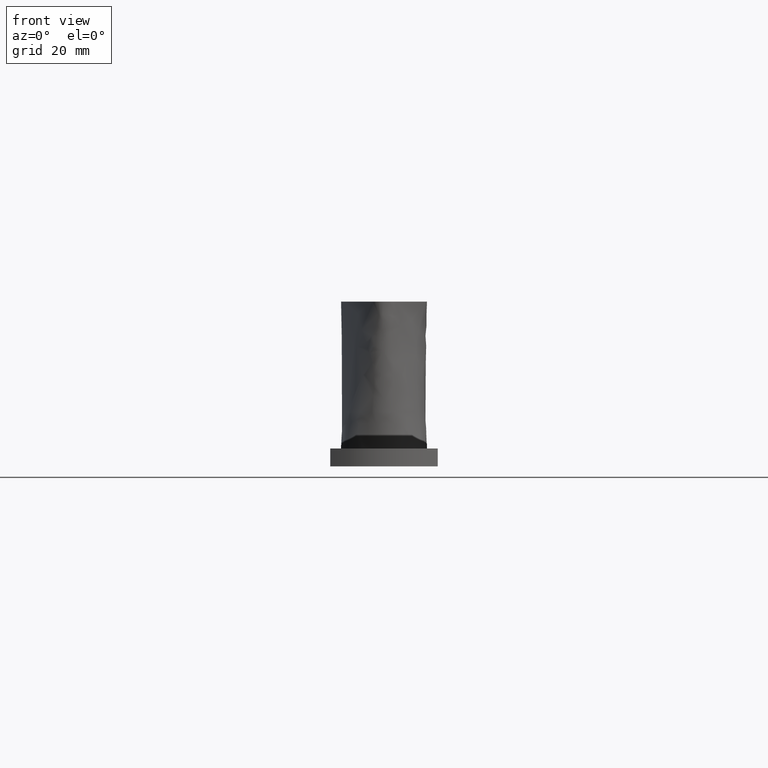
[diagram: clean part render]
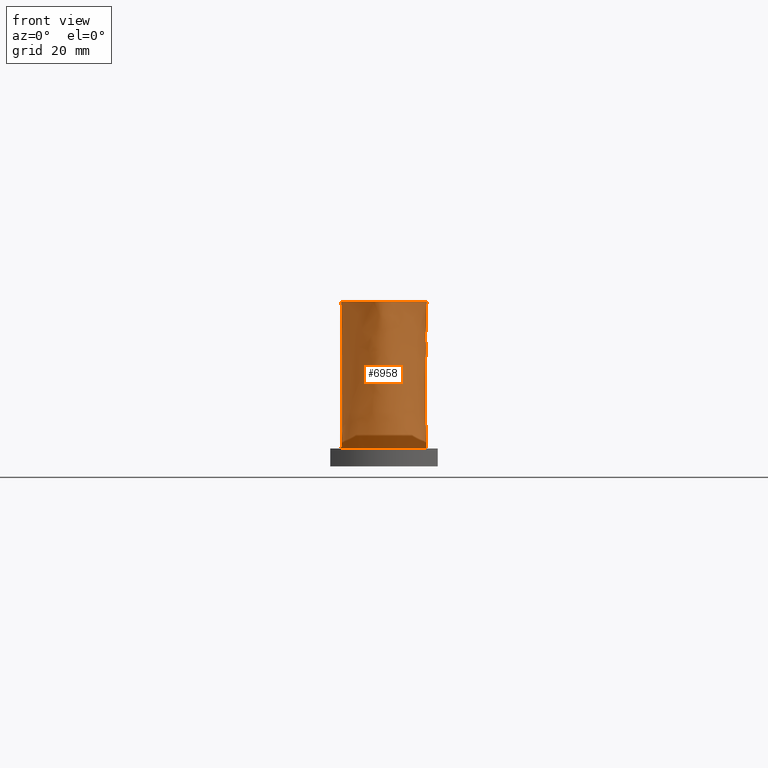
[diagram: same view with one face highlighted and labeled with its STEP entity id]
A machine part, front view. The second image highlights one B-rep face of the part: STEP entity #6958.
In plain terms, the highlighted face is a freeform B-spline surface patch.
Its self-contained STEP definition (entity closure, byte-faithful):
#345 = CARTESIAN_POINT ( 'NONE',  ( -11.46410161321323784, 84.11880215018366869, 43.50000000000000000 ) ) ;
#400 = CARTESIAN_POINT ( 'NONE',  ( 8.639018189386799662, 90.12171645842335010, 43.93942279200636847 ) ) ;
#459 = CARTESIAN_POINT ( 'NONE',  ( -9.891878588296751929, 88.18436017135024940, -0.01752466248678601415 ) ) ;
#517 = CARTESIAN_POINT ( 'NONE',  ( -9.664017299076695267, 89.88873812031310706, 43.93942279200643242 ) ) ;
#576 = CARTESIAN_POINT ( 'NONE',  ( -10.82780502940070910, 89.01775623270444271, 43.49999999999996447 ) ) ;
#608 = CARTESIAN_POINT ( 'NONE',  ( 4.906775124411571376, 70.45535358263663284, 2.499999999999981792 ) ) ;
#635 = CARTESIAN_POINT ( 'NONE',  ( 5.483349930221790736, 73.81949328955225553, 43.93942279200638978 ) ) ;
#666 = CARTESIAN_POINT ( 'NONE',  ( 2.905315791166148021, 69.83838413616943797, 2.499999999999981792 ) ) ;
#693 = CARTESIAN_POINT ( 'NONE',  ( 9.260036413460364102, 89.17032784503989262, 2.499999999999998668 ) ) ;
#715 = VERTEX_POINT ( 'NONE', #2138 ) ;
#761 = CARTESIAN_POINT ( 'NONE',  ( 7.464101615137753498, 77.19059892324152372, 43.50000000000002132 ) ) ;
#829 = CARTESIAN_POINT ( 'NONE',  ( 10.73476501058260801, 86.72443806294116087, -0.01752466248678774888 ) ) ;
#889 = CARTESIAN_POINT ( 'NONE',  ( 11.92447039168126999, 87.11827610633361019, 43.50000000000000000 ) ) ;
#949 = CARTESIAN_POINT ( 'NONE',  ( -10.84821365710961416, 75.23678092484141189, -0.01752466248679338673 ) ) ;
#1015 = CARTESIAN_POINT ( 'NONE',  ( -4.952611897107240146, 70.39316047889955996, -0.01752466248678774888 ) ) ;
#1037 = EDGE_LOOP ( 'NONE', ( #2805, #7866, #6654, #2253, #16525, #7923 ) ) ;
#1081 = CARTESIAN_POINT ( 'NONE',  ( -4.152284242371748313, 71.47907595521607504, 43.93942279200636136 ) ) ;
#1141 = CARTESIAN_POINT ( 'NONE',  ( -3.147116382527626488, 69.70753255502353340, 43.93942279200636847 ) ) ;
#1512 = VERTEX_POINT ( 'NONE', #17715 ) ;
#1694 = CARTESIAN_POINT ( 'NONE',  ( 11.84002208216850782, 79.53997394070383109, 2.499999999999983125 ) ) ;
#1773 = CARTESIAN_POINT ( 'NONE',  ( 8.673617379884035472E-16, 90.11880215351710888, 43.49999999999997158 ) ) ;
#1832 = CARTESIAN_POINT ( 'NONE',  ( -9.659733494025507738, 89.88112011244288624, 43.50000000000006395 ) ) ;
#1914 = CARTESIAN_POINT ( 'NONE',  ( 11.81849371913208024, 79.41827262166258095, 2.500000000000002220 ) ) ;
#1957 = CARTESIAN_POINT ( 'NONE',  ( 0.000000000000000000, 93.80037818780218117, 2.499999999999993339 ) ) ;
#2014 = CARTESIAN_POINT ( 'NONE',  ( -6.607633533758704658, 90.11880215351700940, 43.50000000000000000 ) ) ;
#2076 = CARTESIAN_POINT ( 'NONE',  ( 10.40116799832961547, 87.50511714372201766, 2.500000000000000444 ) ) ;
#2115 = CARTESIAN_POINT ( 'NONE',  ( 11.27271697588979293, 85.68426285150579247, 2.499999999999980904 ) ) ;
#2138 = CARTESIAN_POINT ( 'NONE',  ( 3.464101615137759271, 70.26239569296599541, 43.50000000000000711 ) ) ;
#2146 = CARTESIAN_POINT ( 'NONE',  ( 7.581939534526849656, 71.82845775053293380, 2.500000000000005329 ) ) ;
#2181 = CARTESIAN_POINT ( 'NONE',  ( 10.80359044725986806, 86.74722191829498286, 2.499999999999981792 ) ) ;
#2209 = CARTESIAN_POINT ( 'NONE',  ( 3.147116382527626488, 69.70753255502353340, 43.93942279200636847 ) ) ;
#2253 = ORIENTED_EDGE ( 'NONE', *, *, #7544, .F. ) ;
#2264 = EDGE_CURVE ( 'NONE', #16668, #1512, #3851, .T. ) ;
#2270 = CARTESIAN_POINT ( 'NONE',  ( -6.505213034913026604E-16, 68.21155033601388595, 43.50000000000001421 ) ) ;
#2337 = CARTESIAN_POINT ( 'NONE',  ( 3.144552334000740412, 69.70892010251456838, 43.50000000000000711 ) ) ;
#2459 = CARTESIAN_POINT ( 'NONE',  ( -1.987154359351690935, 69.68848623563326328, -0.01752466248679165201 ) ) ;
#2521 = CARTESIAN_POINT ( 'NONE',  ( -4.160284848258402945, 71.46822042410850884, 43.50000000000000000 ) ) ;
#2699 = CARTESIAN_POINT ( 'NONE',  ( -11.46410161530705274, 84.11880215381029302, 43.50000000000000711 ) ) ;
#2805 = ORIENTED_EDGE ( 'NONE', *, *, #15836, .F. ) ;
#2907 = LINE ( 'NONE', #9519, #14544 ) ;
#3008 = DIRECTION ( 'NONE',  ( 0.000000000000000000, 0.000000000000000000, 1.000000000000000000 ) ) ;
#3197 = CARTESIAN_POINT ( 'NONE',  ( 6.607633533758704658, 90.11880215351700940, 43.50000000000000000 ) ) ;
#3260 = CARTESIAN_POINT ( 'NONE',  ( -8.639098562274034165, 90.11880215351700940, 43.50000000000000711 ) ) ;
#3369 = EDGE_CURVE ( 'NONE', #9280, #9280, #8122, .T. ) ;
#3380 = CARTESIAN_POINT ( 'NONE',  ( 4.625838610893816316, 93.07281547659589194, -0.01752466248679035096 ) ) ;
#3440 = CARTESIAN_POINT ( 'NONE',  ( -1.099227921875344682, 68.35157553523919205, 43.93942279200631873 ) ) ;
#3481 = CARTESIAN_POINT ( 'NONE',  ( -12.16677104907627616, 79.76961887787558680, 2.499999999999982236 ) ) ;
#3506 = CARTESIAN_POINT ( 'NONE',  ( 12.01833193545924239, 82.77293130028370172, 2.500000000000000000 ) ) ;
#3540 = CARTESIAN_POINT ( 'NONE',  ( 9.946022704167940987, 88.23257282026239068, 2.499999999999981348 ) ) ;
#3569 = CARTESIAN_POINT ( 'NONE',  ( 2.012680562429433717, 69.64540930345447123, 2.499999999999999112 ) ) ;
#3607 = CARTESIAN_POINT ( 'NONE',  ( -7.581939534526832780, 71.82845775053289117, 2.499999999999982236 ) ) ;
#3633 = CARTESIAN_POINT ( 'NONE',  ( 2.432851668347684182, 68.93634645623075130, 43.93942279200636136 ) ) ;
#3670 = CARTESIAN_POINT ( 'NONE',  ( -2.012680562429441711, 69.64540930345448544, 2.499999999999981348 ) ) ;
#3702 = CARTESIAN_POINT ( 'NONE',  ( 1.987154359351682276, 69.68848623563324907, -0.01752466248678861624 ) ) ;
#3818 = CARTESIAN_POINT ( 'NONE',  ( -7.429930187110111994, 77.21032780641189674, 43.93942279200646084 ) ) ;
#3851 = CIRCLE ( 'NONE', #9734, 4.000000000000000000 ) ;
#3885 = CARTESIAN_POINT ( 'NONE',  ( -11.46410161321323784, 84.11880215018366869, 43.50000000000000000 ) ) ;
#3950 = CARTESIAN_POINT ( 'NONE',  ( -11.69864865183992997, 84.17238090862882416, 2.499999999999999556 ) ) ;
#4596 = CARTESIAN_POINT ( 'NONE',  ( -7.111556811047673676, 91.27171511707966545, 2.500000000000000444 ) ) ;
#4653 = CARTESIAN_POINT ( 'NONE',  ( -9.260036413460369431, 89.17032784503973630, 2.499999999999996891 ) ) ;
#4712 = CARTESIAN_POINT ( 'NONE',  ( -10.80359044725986273, 86.74722191829502549, 2.500000000000000444 ) ) ;
#4745 = CARTESIAN_POINT ( 'NONE',  ( 11.81849371913208202, 79.41827262166258095, 2.499999999999983125 ) ) ;
#4767 = CARTESIAN_POINT ( 'NONE',  ( -10.73476501058260091, 86.72443806294121771, -0.01752466248678818256 ) ) ;
#4825 = CARTESIAN_POINT ( 'NONE',  ( 11.46410161513774995, 84.11880215351700940, 43.50000000000000711 ) ) ;
#4829 = CARTESIAN_POINT ( 'NONE',  ( -12.09686896742436879, 85.67491542345619848, 43.93942279200635426 ) ) ;
#4887 = CARTESIAN_POINT ( 'NONE',  ( 12.09511112958359291, 82.76433204257031662, -0.01752466248678818256 ) ) ;
#4924 = CARTESIAN_POINT ( 'NONE',  ( 11.81849371913208202, 79.41827262166258095, 2.499999999999983125 ) ) ;
#4951 = CARTESIAN_POINT ( 'NONE',  ( 9.422599898797910711, 80.58281745707735411, 43.50000000000000711 ) ) ;
#4987 = CARTESIAN_POINT ( 'NONE',  ( -4.584831514549479792, 92.90192337159126623, 2.499999999999986677 ) ) ;
#5019 = CARTESIAN_POINT ( 'NONE',  ( -6.444207632105759149E-16, 68.19785089773229458, 43.93942279200637557 ) ) ;
#5058 = CARTESIAN_POINT ( 'NONE',  ( 11.57747021606089000, 78.05575015796787852, 2.499999999999982236 ) ) ;
#5085 = CARTESIAN_POINT ( 'NONE',  ( 4.152284242371748313, 71.47907595521608926, 43.93942279200636847 ) ) ;
#5116 = CARTESIAN_POINT ( 'NONE',  ( -11.69864865183993174, 84.17238090862882416, 2.499999999999981348 ) ) ;
#5145 = CARTESIAN_POINT ( 'NONE',  ( 4.906775124411571376, 70.45535358263663284, 2.500000000000000000 ) ) ;
#5269 = CARTESIAN_POINT ( 'NONE',  ( -2.012680562429441711, 69.64540930345448544, 2.499999999999999556 ) ) ;
#5335 = CARTESIAN_POINT ( 'NONE',  ( -2.890625940025806972, 69.84633362147751257, -0.01752466248678818256 ) ) ;
#5460 = CARTESIAN_POINT ( 'NONE',  ( -12.01833193545924416, 82.77293130028370172, 2.500000000000000000 ) ) ;
#5590 = AXIS2_PLACEMENT_3D ( 'NONE', #17369, #3008, #10280 ) ;
#5716 = VERTEX_POINT ( 'NONE', #2699 ) ;
#5882 = CARTESIAN_POINT ( 'NONE',  ( -3.464101615111427890, 70.26239569292039278, 43.50000000000000711 ) ) ;
#5987 = DIRECTION ( 'NONE',  ( 0.000000000000000000, 0.000000000000000000, 1.000000000000000000 ) ) ;
#6021 = CARTESIAN_POINT ( 'NONE',  ( -11.50813498592278350, 88.14422483199315650, 43.50000000000001421 ) ) ;
#6142 = CARTESIAN_POINT ( 'NONE',  ( 8.646597691669798635, 89.84688521308123654, 2.500000000000000000 ) ) ;
#6202 = CARTESIAN_POINT ( 'NONE',  ( -4.584831514549478904, 92.90192337159125202, 2.500000000000004885 ) ) ;
#6262 = CARTESIAN_POINT ( 'NONE',  ( -11.69864865183992997, 84.17238090862882416, 2.499999999999999556 ) ) ;
#6296 = CARTESIAN_POINT ( 'NONE',  ( 8.646597691669798635, 89.84688521308123654, 2.499999999999981792 ) ) ;
#6326 = CARTESIAN_POINT ( 'NONE',  ( 9.946022704167940987, 88.23257282026239068, 2.499999999999999556 ) ) ;
#6363 = CARTESIAN_POINT ( 'NONE',  ( -8.646597691669791530, 89.84688521308123654, 2.499999999999981792 ) ) ;
#6393 = CARTESIAN_POINT ( 'NONE',  ( 11.53768410104195752, 84.82347769236061197, -0.01752466248678818256 ) ) ;
#6428 = CARTESIAN_POINT ( 'NONE',  ( -1.219727444046192685E-15, 69.48976571255576573, 2.499999999999981348 ) ) ;
#6458 = CARTESIAN_POINT ( 'NONE',  ( 11.51999904749223447, 88.15107455113394508, 43.93942279200636136 ) ) ;
#6490 = CARTESIAN_POINT ( 'NONE',  ( 10.40116799832961547, 87.50511714372201766, 2.499999999999982236 ) ) ;
#6516 = CARTESIAN_POINT ( 'NONE',  ( 11.55191348283593733, 84.81473065074929707, 2.500000000000000000 ) ) ;
#6582 = CARTESIAN_POINT ( 'NONE',  ( 9.393188890295505189, 80.59153301781219625, 43.93942279200636847 ) ) ;
#6609 = CIRCLE ( 'NONE', #18088, 4.000000000000000000 ) ;
#6654 = ORIENTED_EDGE ( 'NONE', *, *, #14939, .F. ) ;
#6762 = CARTESIAN_POINT ( 'NONE',  ( -10.65243998679268245, 75.34981090609912258, 2.500000000000000000 ) ) ;
#6892 = CARTESIAN_POINT ( 'NONE',  ( -2.432851668347686847, 68.93634645623082235, 43.93942279200642531 ) ) ;
#6958 = ADVANCED_FACE ( 'NONE', ( #18389, #14561 ), #14466, .T. ) ;
#7408 = DIRECTION ( 'NONE',  ( 1.000000000000000000, 0.000000000000000000, 0.000000000000000000 ) ) ;
#7464 = CARTESIAN_POINT ( 'NONE',  ( 3.916996567320329525, 90.11880215351690993, 43.50000000000003553 ) ) ;
#7525 = CARTESIAN_POINT ( 'NONE',  ( 7.142499232476364313, 91.34250747853013763, -0.01752466248678818256 ) ) ;
#7544 = EDGE_CURVE ( 'NONE', #1512, #14567, #2907, .T. ) ;
#7548 = CARTESIAN_POINT ( 'NONE',  ( -8.000000000000000000, 86.11880215351700940, 43.50000000000000711 ) ) ;
#7582 = CARTESIAN_POINT ( 'NONE',  ( 8.000000000000000000, 86.11880215351700940, 43.50000000000000711 ) ) ;
#7632 = CARTESIAN_POINT ( 'NONE',  ( -11.46158782505298923, 84.11822791292442503, 43.93942279200636847 ) ) ;
#7696 = CARTESIAN_POINT ( 'NONE',  ( -11.93648356716131609, 87.12225292748705385, 43.93942279200637557 ) ) ;
#7756 = CARTESIAN_POINT ( 'NONE',  ( 11.50813498592279416, 88.14422483199312808, 43.50000000000000000 ) ) ;
#7792 = CARTESIAN_POINT ( 'NONE',  ( -10.80359044725986273, 86.74722191829502549, 2.499999999999982236 ) ) ;
#7815 = CARTESIAN_POINT ( 'NONE',  ( 10.33319685950462841, 87.46587398842427774, -0.01752466248678731520 ) ) ;
#7866 = ORIENTED_EDGE ( 'NONE', *, *, #17754, .F. ) ;
#7879 = CARTESIAN_POINT ( 'NONE',  ( 2.905315791166148021, 69.83838413616943797, 2.500000000000000000 ) ) ;
#7923 = ORIENTED_EDGE ( 'NONE', *, *, #17038, .F. ) ;
#7951 = CARTESIAN_POINT ( 'NONE',  ( 12.09686896742436346, 85.67491542345614164, 43.93942279200634005 ) ) ;
#8011 = CARTESIAN_POINT ( 'NONE',  ( 10.83725564528596941, 89.02617153727356936, 43.93942279200638978 ) ) ;
#8067 = CARTESIAN_POINT ( 'NONE',  ( -12.33527150148872842, 79.71968601254290832, -0.01752466248678297839 ) ) ;
#8122 = B_SPLINE_CURVE_WITH_KNOTS ( 'NONE', 3,
 ( #4745, #1694, #14761, #9062, #12127, #2115, #2181, #6490, #3540, #14886, #6296, #14953, #13555, #10820, #4987, #13618, #6363, #17722, #12184, #15013, #7792, #17854, #16392, #5116, #9181, #3481, #9249, #3607, #13486, #9126, #3670, #12064, #6428, #16459, #16526, #666, #608, #13421, #9315, #5058, #4924 ),
 .UNSPECIFIED., .T., .F.,
 ( 4, 1, 2, 1, 1, 1, 1, 1, 2, 1, 1, 1, 2, 1, 1, 1, 1, 1, 3, 1, 1, 1, 2, 1, 1, 1, 1, 1, 2, 1, 1, 4 ),
 ( 0.000000000000000000, 0.0003541438293050890246, 0.004673149556643683110, 0.006655580505660434881, 0.007646795980168811201, 0.008638011454677187520, 0.009629226929185564707, 0.01062044240369394016, 0.01260287335271069280, 0.01692187908004930477, 0.02124088480738789766, 0.02555989053472650790, 0.02987889626206511814, 0.03186132721108185517, 0.03285254268559022889, 0.03384375816009860954, 0.03483497363460698326, 0.03582618910911535698, 0.03780862005813211135, 0.04212762578547070424, 0.04644663151280930408, 0.05076563724014791085, 0.05508464296748650374, 0.05706707391650325117, 0.05805828939101163183, 0.05904950486552000555, 0.06004072034002837926, 0.06103193581453675992, 0.06301436676355351429, 0.06733337249089210719, 0.07165237821823071396, 0.07561724011626420883 ),
 .UNSPECIFIED. ) ;
#8148 = ORIENTED_EDGE ( 'NONE', *, *, #3369, .T. ) ;
#8323 = CARTESIAN_POINT ( 'NONE',  ( -10.75451691336304805, 82.91447838476419463, 43.93942279200636136 ) ) ;
#8910 = CARTESIAN_POINT ( 'NONE',  ( 6.602232670991305952, 90.10644566001971612, 43.93942279200636136 ) ) ;
#8965 = CARTESIAN_POINT ( 'NONE',  ( -11.78613457191442038, 84.67075098655314491, 43.93942279200636847 ) ) ;
#9027 = CARTESIAN_POINT ( 'NONE',  ( -9.946022704167932105, 88.23257282026239068, 2.499999999999999556 ) ) ;
#9062 = CARTESIAN_POINT ( 'NONE',  ( 12.01833193545924239, 82.77293130028370172, 2.499999999999981792 ) ) ;
#9093 = CARTESIAN_POINT ( 'NONE',  ( -11.71305055316324761, 84.17567080730617590, -0.01752466248678834562 ) ) ;
#9126 = CARTESIAN_POINT ( 'NONE',  ( -2.905315791166152461, 69.83838413616943797, 2.499999999999981792 ) ) ;
#9149 = CARTESIAN_POINT ( 'NONE',  ( -12.08812967655693882, 85.67501454339212330, 43.49999999999999289 ) ) ;
#9181 = CARTESIAN_POINT ( 'NONE',  ( -12.01833193545924416, 82.77293130028370172, 2.499999999999981792 ) ) ;
#9209 = CARTESIAN_POINT ( 'NONE',  ( 12.16677104907627971, 79.76961887787543048, 2.500000000000003997 ) ) ;
#9249 = CARTESIAN_POINT ( 'NONE',  ( -10.65243998679268422, 75.34981090609912258, 2.499999999999981792 ) ) ;
#9276 = CARTESIAN_POINT ( 'NONE',  ( 10.82780502940071088, 89.01775623270449955, 43.50000000000002132 ) ) ;
#9280 = VERTEX_POINT ( 'NONE', #1914 ) ;
#9315 = CARTESIAN_POINT ( 'NONE',  ( 10.56851644383729827, 75.25356456534572658, 2.499999999999976907 ) ) ;
#9342 = CARTESIAN_POINT ( 'NONE',  ( 10.75451691336304982, 82.91447838476419463, 43.93942279200636847 ) ) ;
#9404 = CARTESIAN_POINT ( 'NONE',  ( 0.8428864222858509780, 69.59120176570851868, -0.01752466248678948360 ) ) ;
#9466 = CARTESIAN_POINT ( 'NONE',  ( 9.235493797415323058, 89.12668303862301400, -0.01752466248678818256 ) ) ;
#9519 = CARTESIAN_POINT ( 'NONE',  ( -8.000000000000000000, 90.11880215351700940, 43.50000000000000711 ) ) ;
#9531 = CARTESIAN_POINT ( 'NONE',  ( -2.428396182531445735, 68.94386534416511836, 43.50000000000005684 ) ) ;
#9734 = AXIS2_PLACEMENT_3D ( 'NONE', #7582, #14669, #7408 ) ;
#9782 = CARTESIAN_POINT ( 'NONE',  ( -2.905315791166152461, 69.83838413616943797, 2.500000000000000000 ) ) ;
#10077 = DIRECTION ( 'NONE',  ( 0.4999999999999997224, -0.8660254037844388186, -0.000000000000000000 ) ) ;
#10280 = DIRECTION ( 'NONE',  ( 1.000000000000000000, 0.000000000000000000, 0.000000000000000000 ) ) ;
#10359 = CARTESIAN_POINT ( 'NONE',  ( -11.92447039168127709, 87.11827610633356755, 43.50000000000001421 ) ) ;
#10480 = CARTESIAN_POINT ( 'NONE',  ( -8.639018189386797886, 90.12171645842336432, 43.93942279200636847 ) ) ;
#10538 = CARTESIAN_POINT ( 'NONE',  ( 8.766577993685585879E-16, 90.07934438717639125, 43.93942279200633294 ) ) ;
#10596 = CARTESIAN_POINT ( 'NONE',  ( -6.602232670991305952, 90.10644566001971612, 43.93942279200636136 ) ) ;
#10635 = CIRCLE ( 'NONE', #5590, 4.000000000000004441 ) ;
#10662 = CARTESIAN_POINT ( 'NONE',  ( -1.219727444046192488E-15, 69.48976571255576573, 2.499999999999999556 ) ) ;
#10723 = CARTESIAN_POINT ( 'NONE',  ( 12.33527150148873019, 79.71968601254273779, -0.01752466248678427943 ) ) ;
#10782 = CARTESIAN_POINT ( 'NONE',  ( 7.709432890594915655, 71.70749851086091553, -0.01752466248678427943 ) ) ;
#10820 = CARTESIAN_POINT ( 'NONE',  ( -3.851859888774471268E-31, 93.80037818780218117, 2.499999999999975131 ) ) ;
#10849 = CARTESIAN_POINT ( 'NONE',  ( 10.80359044725986806, 86.74722191829498286, 2.500000000000000000 ) ) ;
#10915 = CARTESIAN_POINT ( 'NONE',  ( 11.78365089627476969, 84.67227774396843643, 43.50000000000000711 ) ) ;
#10971 = CARTESIAN_POINT ( 'NONE',  ( -11.46158782505298923, 84.11822791292442503, 43.93942279200636847 ) ) ;
#11032 = CARTESIAN_POINT ( 'NONE',  ( -7.464101615137760604, 77.19059892324153793, 43.50000000000009237 ) ) ;
#11211 = CARTESIAN_POINT ( 'NONE',  ( -12.16677104907627616, 79.76961887787557259, 2.500000000000000444 ) ) ;
#11792 = CARTESIAN_POINT ( 'NONE',  ( -8.647058161016158095, 89.83018868616184704, -0.01752466248678818256 ) ) ;
#11901 = CARTESIAN_POINT ( 'NONE',  ( -10.40116799832960126, 87.50511714372213135, 2.500000000000002220 ) ) ;
#11963 = CARTESIAN_POINT ( 'NONE',  ( 3.909838960073723335, 90.08897369263547716, 43.93942279200640399 ) ) ;
#12027 = CARTESIAN_POINT ( 'NONE',  ( -11.53768410104196107, 84.82347769236061197, -0.01752466248678861624 ) ) ;
#12064 = CARTESIAN_POINT ( 'NONE',  ( -0.8575677430919358413, 69.52020526144256962, 2.499999999999981348 ) ) ;
#12089 = CARTESIAN_POINT ( 'NONE',  ( 12.08812967655693349, 85.67501454339206646, 43.49999999999997868 ) ) ;
#12127 = CARTESIAN_POINT ( 'NONE',  ( 11.55191348283593733, 84.81473065074929707, 2.499999999999981792 ) ) ;
#12152 = CARTESIAN_POINT ( 'NONE',  ( 11.78613457191441860, 84.67075098655313070, 43.93942279200636847 ) ) ;
#12184 = CARTESIAN_POINT ( 'NONE',  ( -9.946022704167932105, 88.23257282026239068, 2.499999999999981348 ) ) ;
#12215 = CARTESIAN_POINT ( 'NONE',  ( 8.647058161016165201, 89.83018868616184704, -0.01752466248678818256 ) ) ;
#12274 = CARTESIAN_POINT ( 'NONE',  ( -1.254678431775115905E-15, 69.56825202315123136, -0.01752466248678904992 ) ) ;
#12397 = CARTESIAN_POINT ( 'NONE',  ( -7.709432890594897003, 71.70749851086085869, -0.01752466248678297839 ) ) ;
#12525 = CARTESIAN_POINT ( 'NONE',  ( -9.422599898797898277, 80.58281745707724042, 43.49999999999992895 ) ) ;
#12582 = CARTESIAN_POINT ( 'NONE',  ( -10.76791838201710227, 82.91297742237446755, 43.50000000000000000 ) ) ;
#13154 = CARTESIAN_POINT ( 'NONE',  ( -7.142499232476359872, 91.34250747853015184, -0.01752466248678731520 ) ) ;
#13212 = CARTESIAN_POINT ( 'NONE',  ( 7.111556811047677229, 91.27171511707965124, 2.499999999999999556 ) ) ;
#13268 = CARTESIAN_POINT ( 'NONE',  ( -11.51999904749222559, 88.15107455113397350, 43.93942279200637557 ) ) ;
#13330 = CARTESIAN_POINT ( 'NONE',  ( -11.55191348283594088, 84.81473065074929707, 2.499999999999999556 ) ) ;
#13421 = CARTESIAN_POINT ( 'NONE',  ( 7.581939534526850544, 71.82845775053293380, 2.499999999999987121 ) ) ;
#13449 = CARTESIAN_POINT ( 'NONE',  ( 4.952611897107234817, 70.39316047889954575, -0.01752466248678818256 ) ) ;
#13486 = CARTESIAN_POINT ( 'NONE',  ( -4.906775124411576705, 70.45535358263664705, 2.499999999999981792 ) ) ;
#13516 = CARTESIAN_POINT ( 'NONE',  ( 7.429930187110104001, 77.21032780641188253, 43.93942279200638978 ) ) ;
#13555 = CARTESIAN_POINT ( 'NONE',  ( 4.584831514549431830, 92.90192337159120939, 2.499999999999981792 ) ) ;
#13582 = CARTESIAN_POINT ( 'NONE',  ( 0.8575677430919310673, 69.52020526144255541, 2.499999999999999112 ) ) ;
#13618 = CARTESIAN_POINT ( 'NONE',  ( -7.111556811047674564, 91.27171511707967966, 2.499999999999982236 ) ) ;
#13646 = CARTESIAN_POINT ( 'NONE',  ( 11.22264815676700067, 85.68483072574389325, -0.01752466248678731520 ) ) ;
#13708 = CARTESIAN_POINT ( 'NONE',  ( 5.505603331477590956, 73.79838038940566491, 43.50000000000002132 ) ) ;
#13837 = CARTESIAN_POINT ( 'NONE',  ( -0.8428864222858566402, 69.59120176570854710, -0.01752466248678558047 ) ) ;
#13964 = CARTESIAN_POINT ( 'NONE',  ( -11.71305055316324761, 84.17567080730617590, -0.01752466248678834562 ) ) ;
#14466 = B_SPLINE_SURFACE_WITH_KNOTS ( 'NONE', 3, 1, ( 
 ( #7632, #345, #6262, #9093 ),
 ( #8965, #16111, #13330, #12027 ),
 ( #4829, #9149, #14848, #16296 ),
 ( #7696, #10359, #4712, #4767 ),
 ( #13268, #6021, #11901, #17690 ),
 ( #17629, #576, #9027, #459 ),
 ( #517, #1832, #4653, #16056 ),
 ( #10480, #3260, #14789, #11792 ),
 ( #10596, #2014, #4596, #13154 ),
 ( #14663, #17562, #6202, #16234 ),
 ( #10538, #1773, #1957, #14602 ),
 ( #11963, #7464, #17507, #3380 ),
 ( #8910, #3197, #13212, #7525 ),
 ( #400, #14724, #6142, #12215 ),
 ( #15040, #16612, #693, #9466 ),
 ( #8011, #9276, #6326, #17935 ),
 ( #6458, #7756, #2076, #7815 ),
 ( #15106, #889, #10849, #829 ),
 ( #7951, #12089, #17877, #13646 ),
 ( #12152, #10915, #6516, #6393 ),
 ( #9342, #14980, #3506, #4887 ),
 ( #6582, #4951, #9209, #10723 ),
 ( #13516, #761, #16419, #16491 ),
 ( #635, #13708, #2146, #10782 ),
 ( #5085, #17997, #5145, #13449 ),
 ( #2209, #2337, #7879, #15171 ),
 ( #3633, #16553, #3569, #3702 ),
 ( #18062, #16355, #13582, #9404 ),
 ( #5019, #2270, #10662, #12274 ),
 ( #3440, #14918, #17818, #13837 ),
 ( #6892, #9531, #5269, #2459 ),
 ( #1141, #18244, #9782, #5335 ),
 ( #1081, #2521, #15363, #1015 ),
 ( #18123, #16936, #15233, #12397 ),
 ( #3818, #11032, #6762, #949 ),
 ( #15294, #12525, #11211, #8067 ),
 ( #8323, #12582, #5460, #16808 ),
 ( #10971, #3885, #3950, #13964 ) ),
 .UNSPECIFIED., .T., .F., .F.,
 ( 4, 1, 1, 1, 1, 1, 2, 1, 1, 1, 2, 1, 1, 1, 1, 1, 2, 1, 1, 1, 2, 1, 1, 1, 1, 1, 2, 1, 1, 1, 4 ),
 ( 2, 1, 1, 2 ),
 ( 0.000000000000000000, 0.02621665305383654582, 0.03932497958075482219, 0.05243330610767309163, 0.06554163263459138189, 0.07864995916150964439, 0.1048666122153461833, 0.1619832924948430564, 0.2190999727743399017, 0.2762166530538366915, 0.3333333333333334814, 0.3595499863871700619, 0.3726583129140883521, 0.3857666394410065869, 0.3988749659679248216, 0.4119832924948431119, 0.4381999455486796924, 0.4953166258281765377, 0.5524333061076732720, 0.6095499863871700619, 0.6666666666666667407, 0.6928833197205033212, 0.7059916462474216114, 0.7190999727743399017, 0.7322082993012581920, 0.7453166258281764822, 0.7715332788820130627, 0.8286499591615097415, 0.8857666394410065314, 0.9428833197205033212, 1.000000000000000000 ),
 ( -0.01071762907332596271, 0.000000000000000000, 1.000000000000000000, 1.061403040548458243 ),
 .UNSPECIFIED. ) ;
#14544 = VECTOR ( 'NONE', #15222, 1000.000000000000000 ) ;
#14561 = FACE_OUTER_BOUND ( 'NONE', #16189, .T. ) ;
#14567 = VERTEX_POINT ( 'NONE', #18480 ) ;
#14602 = CARTESIAN_POINT ( 'NONE',  ( -5.325864796788315750E-17, 94.02643815031761676, -0.01752466248679295305 ) ) ;
#14663 = CARTESIAN_POINT ( 'NONE',  ( -3.909838960073720671, 90.08897369263557664, 43.93942279200639689 ) ) ;
#14669 = DIRECTION ( 'NONE',  ( 0.000000000000000000, 0.000000000000000000, 1.000000000000000000 ) ) ;
#14724 = CARTESIAN_POINT ( 'NONE',  ( 8.639098562274035942, 90.11880215351700940, 43.50000000000000711 ) ) ;
#14761 = CARTESIAN_POINT ( 'NONE',  ( 12.09863724434053900, 81.14814436999544967, 2.499999999999984013 ) ) ;
#14789 = CARTESIAN_POINT ( 'NONE',  ( -8.646597691669791530, 89.84688521308123654, 2.500000000000000000 ) ) ;
#14848 = CARTESIAN_POINT ( 'NONE',  ( -11.27271697588980182, 85.68426285150569299, 2.499999999999997335 ) ) ;
#14886 = CARTESIAN_POINT ( 'NONE',  ( 9.260036413460364102, 89.17032784503989262, 2.499999999999980460 ) ) ;
#14918 = CARTESIAN_POINT ( 'NONE',  ( -1.096665362280565548, 68.36396766096177657, 43.49999999999995737 ) ) ;
#14939 = EDGE_CURVE ( 'NONE', #14567, #5716, #6609, .T. ) ;
#14953 = CARTESIAN_POINT ( 'NONE',  ( 7.111556811047678117, 91.27171511707966545, 2.499999999999981348 ) ) ;
#14980 = CARTESIAN_POINT ( 'NONE',  ( 10.76791838201710405, 82.91297742237446755, 43.50000000000000711 ) ) ;
#15013 = CARTESIAN_POINT ( 'NONE',  ( -10.40116799832960126, 87.50511714372213135, 2.499999999999984013 ) ) ;
#15040 = CARTESIAN_POINT ( 'NONE',  ( 9.664017299076672174, 89.88873812031306443, 43.93942279200634715 ) ) ;
#15106 = CARTESIAN_POINT ( 'NONE',  ( 11.93648356716130898, 87.12225292748709649, 43.93942279200636136 ) ) ;
#15171 = CARTESIAN_POINT ( 'NONE',  ( 2.890625940025802976, 69.84633362147751257, -0.01752466248678818256 ) ) ;
#15188 = CARTESIAN_POINT ( 'NONE',  ( 11.46410161513774995, 84.11880215351700940, 43.50000000000000711 ) ) ;
#15222 = DIRECTION ( 'NONE',  ( -1.000000000000000000, -0.000000000000000000, -0.000000000000000000 ) ) ;
#15233 = CARTESIAN_POINT ( 'NONE',  ( -7.581939534526831892, 71.82845775053289117, 2.500000000000000444 ) ) ;
#15294 = CARTESIAN_POINT ( 'NONE',  ( -9.393188890295492754, 80.59153301781208256, 43.93942279200629031 ) ) ;
#15363 = CARTESIAN_POINT ( 'NONE',  ( -4.906775124411576705, 70.45535358263664705, 2.500000000000000000 ) ) ;
#15836 = EDGE_CURVE ( 'NONE', #17401, #715, #10635, .T. ) ;
#16022 = DIRECTION ( 'NONE',  ( -1.000000000000000000, 0.000000000000000000, 0.000000000000000000 ) ) ;
#16056 = CARTESIAN_POINT ( 'NONE',  ( -9.235493797415326611, 89.12668303862285768, -0.01752466248679512145 ) ) ;
#16107 = DIRECTION ( 'NONE',  ( 0.4999999999999997224, 0.8660254037844388186, -0.000000000000000000 ) ) ;
#16111 = CARTESIAN_POINT ( 'NONE',  ( -11.78365089627477147, 84.67227774396845064, 43.50000000000000711 ) ) ;
#16189 = EDGE_LOOP ( 'NONE', ( #8148 ) ) ;
#16234 = CARTESIAN_POINT ( 'NONE',  ( -4.625838610893867830, 93.07281547659594878, -0.01752466248678514679 ) ) ;
#16247 = LINE ( 'NONE', #18539, #16458 ) ;
#16296 = CARTESIAN_POINT ( 'NONE',  ( -11.22264815676700955, 85.68483072574380799, -0.01752466248679035096 ) ) ;
#16355 = CARTESIAN_POINT ( 'NONE',  ( 1.096665362280573319, 68.36396766096184763, 43.50000000000001421 ) ) ;
#16392 = CARTESIAN_POINT ( 'NONE',  ( -11.55191348283594088, 84.81473065074929707, 2.499999999999981348 ) ) ;
#16419 = CARTESIAN_POINT ( 'NONE',  ( 10.65243998679267179, 75.34981090609910837, 2.499999999999995115 ) ) ;
#16458 = VECTOR ( 'NONE', #10077, 1000.000000000000000 ) ;
#16459 = CARTESIAN_POINT ( 'NONE',  ( 0.8575677430919309563, 69.52020526144255541, 2.499999999999980904 ) ) ;
#16491 = CARTESIAN_POINT ( 'NONE',  ( 10.84821365710960350, 75.23678092484138347, -0.01752466248679468777 ) ) ;
#16525 = ORIENTED_EDGE ( 'NONE', *, *, #2264, .F. ) ;
#16526 = CARTESIAN_POINT ( 'NONE',  ( 2.012680562429433717, 69.64540930345447123, 2.499999999999980904 ) ) ;
#16553 = CARTESIAN_POINT ( 'NONE',  ( 2.428396182531443070, 68.94386534416504730, 43.50000000000000000 ) ) ;
#16612 = CARTESIAN_POINT ( 'NONE',  ( 9.659733494025484646, 89.88112011244284361, 43.49999999999998579 ) ) ;
#16668 = VERTEX_POINT ( 'NONE', #15188 ) ;
#16808 = CARTESIAN_POINT ( 'NONE',  ( -12.09511112958359469, 82.76433204257031662, -0.01752466248678774888 ) ) ;
#16936 = CARTESIAN_POINT ( 'NONE',  ( -5.505603331477581186, 73.79838038940562228, 43.49999999999992895 ) ) ;
#17038 = EDGE_CURVE ( 'NONE', #715, #16668, #18061, .T. ) ;
#17170 = VECTOR ( 'NONE', #16107, 1000.000000000000000 ) ;
#17369 = CARTESIAN_POINT ( 'NONE',  ( 0.000000000000000000, 72.26239569296599541, 43.50000000000000711 ) ) ;
#17401 = VERTEX_POINT ( 'NONE', #5882 ) ;
#17507 = CARTESIAN_POINT ( 'NONE',  ( 4.584831514549430942, 92.90192337159119518, 2.500000000000000000 ) ) ;
#17562 = CARTESIAN_POINT ( 'NONE',  ( -3.916996567320326861, 90.11880215351700940, 43.50000000000002842 ) ) ;
#17629 = CARTESIAN_POINT ( 'NONE',  ( -10.83725564528596941, 89.02617153727351251, 43.93942279200632584 ) ) ;
#17690 = CARTESIAN_POINT ( 'NONE',  ( -10.33319685950461064, 87.46587398842437722, -0.01752466248678644783 ) ) ;
#17715 = CARTESIAN_POINT ( 'NONE',  ( 8.000000000040468962, 90.11880215351700940, 43.50000000000000711 ) ) ;
#17722 = CARTESIAN_POINT ( 'NONE',  ( -9.260036413460369431, 89.17032784503973630, 2.499999999999978684 ) ) ;
#17754 = EDGE_CURVE ( 'NONE', #5716, #17401, #16247, .T. ) ;
#17818 = CARTESIAN_POINT ( 'NONE',  ( -0.8575677430919359523, 69.52020526144256962, 2.499999999999999556 ) ) ;
#17854 = CARTESIAN_POINT ( 'NONE',  ( -11.27271697588980182, 85.68426285150569299, 2.499999999999979128 ) ) ;
#17877 = CARTESIAN_POINT ( 'NONE',  ( 11.27271697588979293, 85.68426285150579247, 2.499999999999999112 ) ) ;
#17935 = CARTESIAN_POINT ( 'NONE',  ( 9.891878588296760810, 88.18436017135023519, -0.01752466248678991728 ) ) ;
#17997 = CARTESIAN_POINT ( 'NONE',  ( 4.160284848258402945, 71.46822042410852305, 43.50000000000000711 ) ) ;
#18061 = LINE ( 'NONE', #4825, #17170 ) ;
#18062 = CARTESIAN_POINT ( 'NONE',  ( 1.099227921875352454, 68.35157553523926310, 43.93942279200637557 ) ) ;
#18088 = AXIS2_PLACEMENT_3D ( 'NONE', #7548, #5987, #16022 ) ;
#18123 = CARTESIAN_POINT ( 'NONE',  ( -5.483349930221780966, 73.81949328955219869, 43.93942279200629031 ) ) ;
#18244 = CARTESIAN_POINT ( 'NONE',  ( -3.144552334000740412, 69.70892010251456838, 43.50000000000000711 ) ) ;
#18389 = FACE_OUTER_BOUND ( 'NONE', #1037, .T. ) ;
#18480 = CARTESIAN_POINT ( 'NONE',  ( -8.000000000330718564, 90.11880215351700940, 43.50000000000000711 ) ) ;
#18539 = CARTESIAN_POINT ( 'NONE',  ( -3.464101615137759271, 70.26239569296599541, 43.50000000000000711 ) ) ;